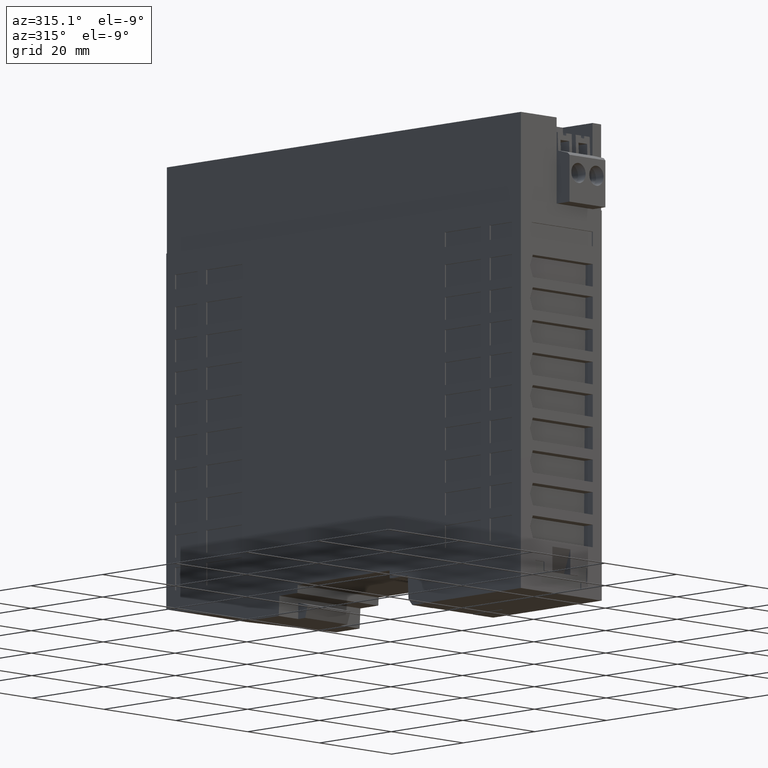
[diagram: clean part render]
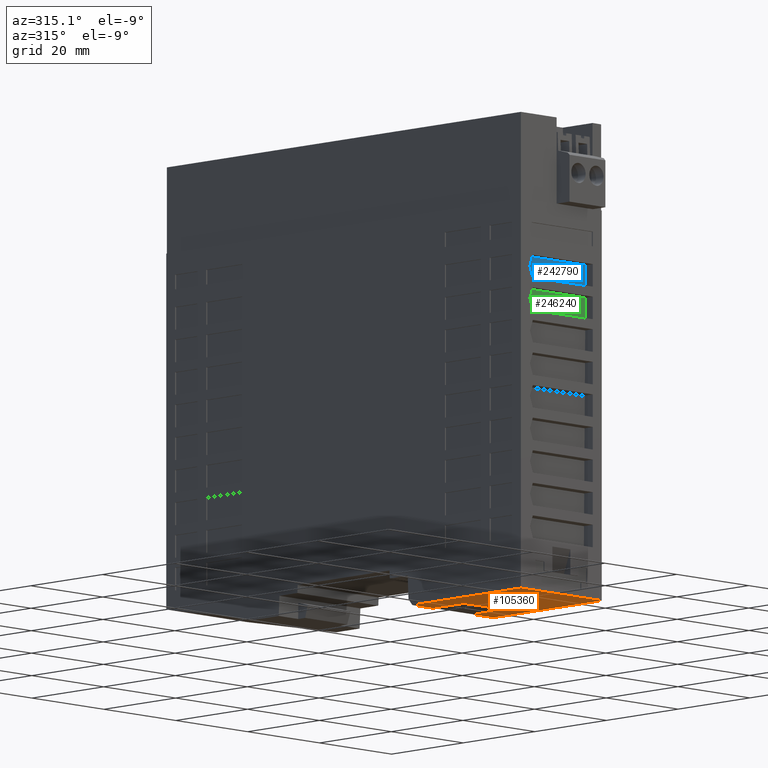
[diagram: same view with three faces highlighted in distinct colors, each labeled with its STEP entity id]
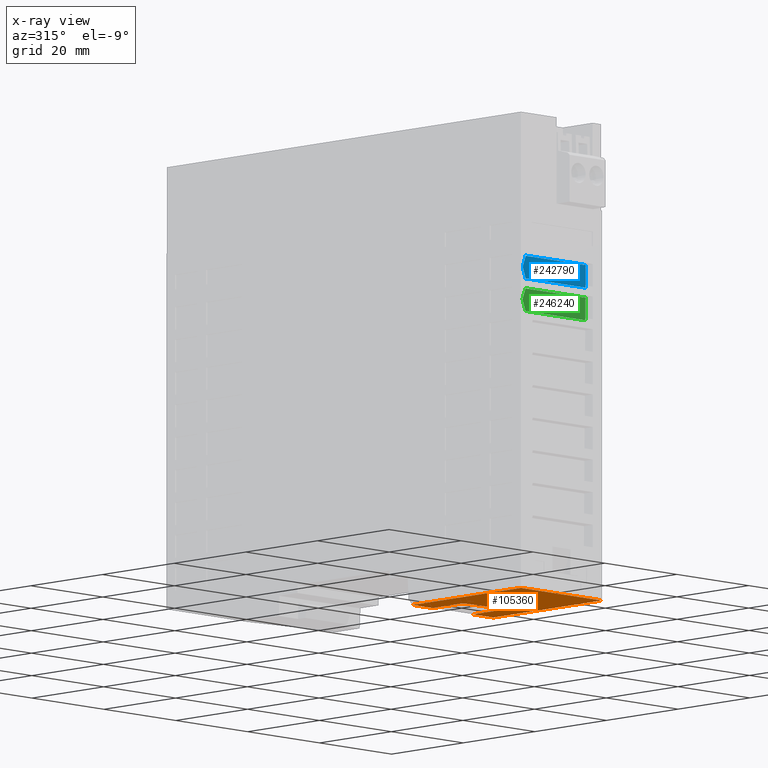
[diagram: x-ray of the same camera — body ghosted, the three highlighted faces saturated]
A machine part, auxiliary view with three faces highlighted in distinct colors.
The next image is the same camera in x-ray (body ghosted, the three faces saturated) — at least one of them is partly hidden behind the body in this view.
Their STEP definitions:

[orange] entity #105360 — the highlighted planar face has unit normal (0, 0, 1).
#7720=CARTESIAN_POINT('',(-11.25,-6.,-19.1982991225571));
#7730=VERTEX_POINT('',#7720);
#7760=CARTESIAN_POINT('',(-11.25,-6.,0.));
#7770=DIRECTION('',(0.,0.,1.));
#7780=VECTOR('',#7770,1.);
#7790=LINE('',#7760,#7780);
#7800=CARTESIAN_POINT('',(-11.25,-6.,-49.5));
#7810=VERTEX_POINT('',#7800);
#7820=EDGE_CURVE('',#7810,#7730,#7790,.T.);
#21790=CARTESIAN_POINT('',(11.25,-6.,-49.5));
#21800=VERTEX_POINT('',#21790);
#21830=CARTESIAN_POINT('',(11.25,-6.,0.));
#21840=DIRECTION('',(0.,0.,-1.));
#21850=VECTOR('',#21840,1.);
#21860=LINE('',#21830,#21850);
#21870=CARTESIAN_POINT('',(11.25,-5.99999999999999,-19.1982991225571));
#21880=VERTEX_POINT('',#21870);
#21890=EDGE_CURVE('',#21880,#21800,#21860,.T.);
#23640=CARTESIAN_POINT('',(0.,-5.99999999999999,-19.1982991225571));
#23650=DIRECTION('',(1.,0.,0.));
#23660=VECTOR('',#23650,1.);
#23670=LINE('',#23640,#23660);
#23680=CARTESIAN_POINT('',(5.551125818201,-6.,-19.1982991225571));
#23690=VERTEX_POINT('',#23680);
#23700=EDGE_CURVE('',#23690,#21880,#23670,.T.);
#104820=CARTESIAN_POINT('',(-11.25,-6.,-19.19829912255));
#104830=DIRECTION('',(0.,1.,0.));
#104840=DIRECTION('',(0.,0.,1.));
#104850=AXIS2_PLACEMENT_3D('',#104820,#104830,#104840);
#104860=PLANE('',#104850);
#104870=ORIENTED_EDGE('',*,*,#21890,.F.);
#104880=CARTESIAN_POINT('',(0.,-6.,-49.5));
#104890=DIRECTION('',(1.,0.,0.));
#104900=VECTOR('',#104890,1.);
#104910=LINE('',#104880,#104900);
#104920=EDGE_CURVE('',#7810,#21800,#104910,.T.);
#104930=ORIENTED_EDGE('',*,*,#104920,.T.);
#104940=ORIENTED_EDGE('',*,*,#7820,.F.);
#104950=CARTESIAN_POINT('',(0.,-5.99999999999999,-19.1982991225571));
#104960=DIRECTION('',(1.,0.,0.));
#104970=VECTOR('',#104960,1.);
#104980=LINE('',#104950,#104970);
#104990=CARTESIAN_POINT('',(-5.551125818201,-6.,-19.1982991225571));
#105000=VERTEX_POINT('',#104990);
#105010=EDGE_CURVE('',#7730,#105000,#104980,.T.);
#105020=ORIENTED_EDGE('',*,*,#105010,.F.);
#105030=CARTESIAN_POINT('',(-5.551125818201,-6.,0.));
#105040=DIRECTION('',(-1.38777878078145E-16,0.,1.));
#105050=VECTOR('',#105040,1.);
#105060=LINE('',#105030,#105050);
#105070=CARTESIAN_POINT('',(-5.551125818201,-6.,-27.7128728025089));
#105080=VERTEX_POINT('',#105070);
#105090=EDGE_CURVE('',#105080,#105000,#105060,.T.);
#105100=ORIENTED_EDGE('',*,*,#105090,.T.);
#105110=CARTESIAN_POINT('',(0.,-6.,-28.000000000002));
#105120=DIRECTION('',(-0.998664984942109,0.,0.0516550854280403));
#105130=VECTOR('',#105120,1.);
#105140=LINE('',#105110,#105130);
#105150=CARTESIAN_POINT('',(-4.14119134789335E-13,-6.,-28.));
#105160=VERTEX_POINT('',#105150);
#105170=EDGE_CURVE('',#105160,#105080,#105140,.T.);
#105180=ORIENTED_EDGE('',*,*,#105170,.T.);
#105190=CARTESIAN_POINT('',(0.,-6.,-28.));
#105200=DIRECTION('',(-0.998664984942109,-0.,-0.0516550854280406));
#105210=VECTOR('',#105200,1.);
#105220=LINE('',#105190,#105210);
#105230=CARTESIAN_POINT('',(5.551125818201,-6.,-27.7128728025068));
#105240=VERTEX_POINT('',#105230);
#105250=EDGE_CURVE('',#105240,#105160,#105220,.T.);
#105260=ORIENTED_EDGE('',*,*,#105250,.T.);
#105270=CARTESIAN_POINT('',(5.551125818201,-6.,0.));
#105280=DIRECTION('',(1.38777878078145E-16,0.,-1.));
#105290=VECTOR('',#105280,1.);
#105300=LINE('',#105270,#105290);
#105310=EDGE_CURVE('',#23690,#105240,#105300,.T.);
#105320=ORIENTED_EDGE('',*,*,#105310,.T.);
#105330=ORIENTED_EDGE('',*,*,#23700,.F.);
#105340=EDGE_LOOP('',(#105330,#105320,#105260,#105180,#105100,#105020,
#104940,#104930,#104870));
#105350=FACE_OUTER_BOUND('',#105340,.T.);
#105360=ADVANCED_FACE('',(#105350),#104860,.F.);

[blue] entity #242790 — the highlighted planar face has unit normal (0, 1, 0.0087).
#136350=CARTESIAN_POINT('',(12.08487880955,71.8,-47.6));
#136360=DIRECTION('',(-0.,0.00872653549837375,0.999961923064171));
#136370=DIRECTION('',(1.,0.,0.));
#136380=AXIS2_PLACEMENT_3D('',#136350,#136360,#136370);
#136390=PLANE('',#136380);
#241930=CARTESIAN_POINT('',(8.75000000000002,58.5999999999999,
-47.484805345162));
#241940=VERTEX_POINT('',#241930);
#241970=CARTESIAN_POINT('',(13.5544070923144,71.8,-47.6));
#241980=DIRECTION('',(0.342008643580674,0.939661025496111,
-0.00820029753763322));
#241990=VECTOR('',#241980,1.);
#242000=LINE('',#241970,#241990);
#242010=CARTESIAN_POINT('',(7.931066972901,56.35,-47.4651698926328));
#242020=VERTEX_POINT('',#242010);
#242030=EDGE_CURVE('',#242020,#241940,#242000,.T.);
#242310=CARTESIAN_POINT('',(7.93106697290096,60.85,-47.5044407976912));
#242320=VERTEX_POINT('',#242310);
#242350=CARTESIAN_POINT('',(3.94559290768565,71.8,-47.6));
#242360=DIRECTION('',(-0.342008643580674,0.939661025496111,
-0.00820029753763322));
#242370=VECTOR('',#242360,1.);
#242380=LINE('',#242350,#242370);
#242390=EDGE_CURVE('',#241940,#242320,#242380,.T.);
#242530=ORIENTED_EDGE('',*,*,#242390,.F.);
#242540=CARTESIAN_POINT('',(0.,60.85,-47.5044407976912));
#242550=DIRECTION('',(-1.,0.,0.));
#242560=VECTOR('',#242550,1.);
#242570=LINE('',#242540,#242560);
#242580=CARTESIAN_POINT('',(-8.75,60.85,-47.5044407976912));
#242590=VERTEX_POINT('',#242580);
#242600=EDGE_CURVE('',#242320,#242590,#242570,.T.);
#242610=ORIENTED_EDGE('',*,*,#242600,.F.);
#242620=CARTESIAN_POINT('',(-8.75,71.8,-47.6));
#242630=DIRECTION('',(8.67361737988404E-19,-0.999961923064171,
0.00872653549837375));
#242640=VECTOR('',#242630,1.);
#242650=LINE('',#242620,#242640);
#242660=CARTESIAN_POINT('',(-8.75,56.35,-47.4651698926328));
#242670=VERTEX_POINT('',#242660);
#242680=EDGE_CURVE('',#242590,#242670,#242650,.T.);
#242690=ORIENTED_EDGE('',*,*,#242680,.F.);
#242700=CARTESIAN_POINT('',(0.,56.35,-47.4651698926328));
#242710=DIRECTION('',(1.,0.,0.));
#242720=VECTOR('',#242710,1.);
#242730=LINE('',#242700,#242720);
#242740=EDGE_CURVE('',#242670,#242020,#242730,.T.);
#242750=ORIENTED_EDGE('',*,*,#242740,.F.);
#242760=ORIENTED_EDGE('',*,*,#242030,.F.);
#242770=EDGE_LOOP('',(#242760,#242750,#242690,#242610,#242530));
#242780=FACE_OUTER_BOUND('',#242770,.T.);
#242790=ADVANCED_FACE('',(#242780),#136390,.F.);

[green] entity #246240 — the highlighted planar face has unit normal (0, 1, 0.0087).
#136350=CARTESIAN_POINT('',(12.08487880955,71.8,-47.6));
#136360=DIRECTION('',(-0.,0.00872653549837375,0.999961923064171));
#136370=DIRECTION('',(1.,0.,0.));
#136380=AXIS2_PLACEMENT_3D('',#136350,#136360,#136370);
#136390=PLANE('',#136380);
#245380=CARTESIAN_POINT('',(8.75000000000002,52.1000000000001,
-47.4280807045221));
#245390=VERTEX_POINT('',#245380);
#245420=CARTESIAN_POINT('',(15.9202136150449,71.8,-47.6));
#245430=DIRECTION('',(0.342008643580674,0.939661025496111,
-0.00820029753763322));
#245440=VECTOR('',#245430,1.);
#245450=LINE('',#245420,#245440);
#245460=CARTESIAN_POINT('',(7.93106697290096,49.85,-47.4084452519929));
#245470=VERTEX_POINT('',#245460);
#245480=EDGE_CURVE('',#245470,#245390,#245450,.T.);
#245760=CARTESIAN_POINT('',(7.931066972901,54.35,-47.4477161570513));
#245770=VERTEX_POINT('',#245760);
#245800=CARTESIAN_POINT('',(1.57978638495513,71.8,-47.6));
#245810=DIRECTION('',(-0.342008643580674,0.939661025496111,
-0.00820029753763322));
#245820=VECTOR('',#245810,1.);
#245830=LINE('',#245800,#245820);
#245840=EDGE_CURVE('',#245390,#245770,#245830,.T.);
#245980=ORIENTED_EDGE('',*,*,#245840,.F.);
#245990=CARTESIAN_POINT('',(0.,54.35,-47.4477161570513));
#246000=DIRECTION('',(-1.,0.,0.));
#246010=VECTOR('',#246000,1.);
#246020=LINE('',#245990,#246010);
#246030=CARTESIAN_POINT('',(-8.75,54.35,-47.4477161570513));
#246040=VERTEX_POINT('',#246030);
#246050=EDGE_CURVE('',#245770,#246040,#246020,.T.);
#246060=ORIENTED_EDGE('',*,*,#246050,.F.);
#246070=CARTESIAN_POINT('',(-8.75,71.8,-47.6));
#246080=DIRECTION('',(8.67361737988404E-19,-0.999961923064171,
0.00872653549837375));
#246090=VECTOR('',#246080,1.);
#246100=LINE('',#246070,#246090);
#246110=CARTESIAN_POINT('',(-8.75,49.85,-47.4084452519929));
#246120=VERTEX_POINT('',#246110);
#246130=EDGE_CURVE('',#246040,#246120,#246100,.T.);
#246140=ORIENTED_EDGE('',*,*,#246130,.F.);
#246150=CARTESIAN_POINT('',(0.,49.85,-47.4084452519929));
#246160=DIRECTION('',(1.,0.,0.));
#246170=VECTOR('',#246160,1.);
#246180=LINE('',#246150,#246170);
#246190=EDGE_CURVE('',#246120,#245470,#246180,.T.);
#246200=ORIENTED_EDGE('',*,*,#246190,.F.);
#246210=ORIENTED_EDGE('',*,*,#245480,.F.);
#246220=EDGE_LOOP('',(#246210,#246200,#246140,#246060,#245980));
#246230=FACE_OUTER_BOUND('',#246220,.T.);
#246240=ADVANCED_FACE('',(#246230),#136390,.F.);